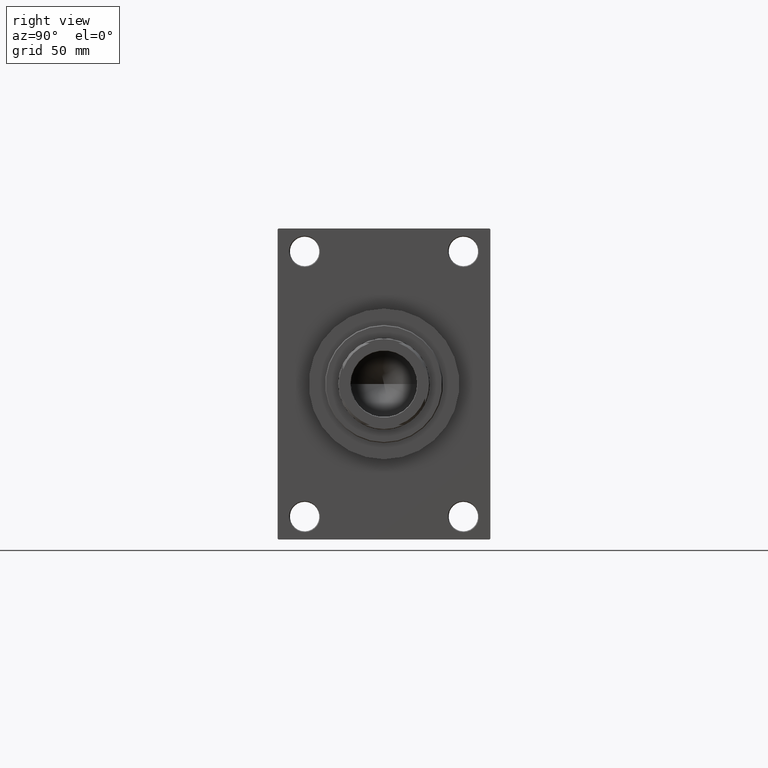
[diagram: clean part render]
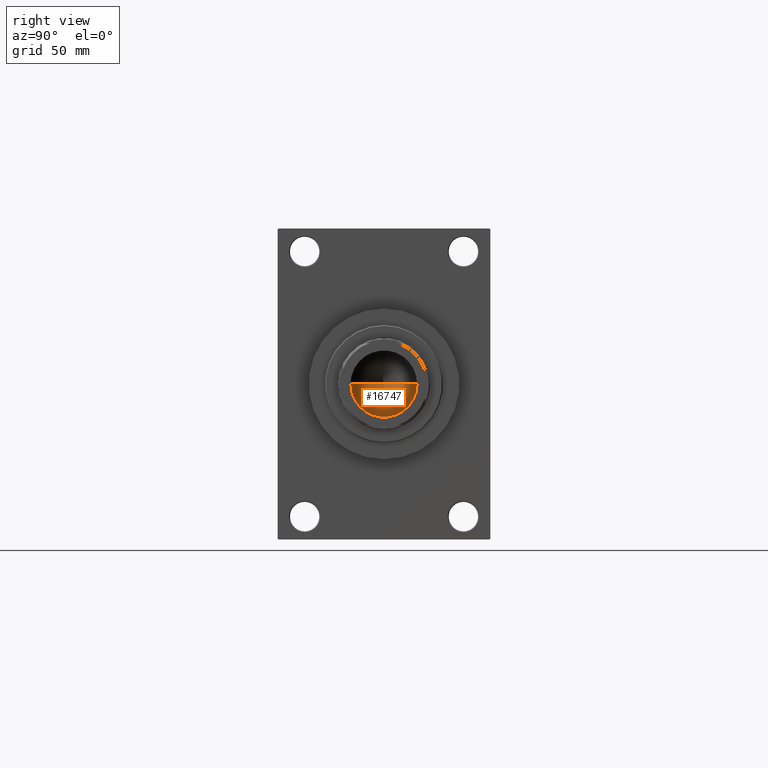
[diagram: same view with one face highlighted and labeled with its STEP entity id]
A machine part, right view. The second image highlights one B-rep face of the part: STEP entity #16747.
In plain terms, the highlighted conical surface has half-angle 59 deg.
Its self-contained STEP definition (entity closure, byte-faithful):
#130 = VERTEX_POINT ( 'NONE', #34327 ) ;
#213 = VERTEX_POINT ( 'NONE', #32996 ) ;
#463 = EDGE_CURVE ( 'NONE', #213, #130, #42355, .T. ) ;
#1725 = EDGE_CURVE ( 'NONE', #213, #25895, #47270, .T. ) ;
#3604 = ORIENTED_EDGE ( 'NONE', *, *, #43798, .T. ) ;
#4274 = VECTOR ( 'NONE', #24318, 1000.000000000000000 ) ;
#4807 = CARTESIAN_POINT ( 'NONE',  ( 20.24999999999998934, 0.000000000000000000, 257.0000000000000000 ) ) ;
#5421 = ORIENTED_EDGE ( 'NONE', *, *, #1725, .T. ) ;
#9004 = DIRECTION ( 'NONE',  ( -0.8571673007021112234, 1.049727191138617340E-16, 0.5150380749100560429 ) ) ;
#11501 = ORIENTED_EDGE ( 'NONE', *, *, #463, .F. ) ;
#11649 = AXIS2_PLACEMENT_3D ( 'NONE', #41222, #18277, #37257 ) ;
#13716 = VECTOR ( 'NONE', #9004, 1000.000000000000000 ) ;
#16002 = CONICAL_SURFACE ( 'NONE', #27011, 20.24999999999998934, 1.029744258676652313 ) ;
#16747 = ADVANCED_FACE ( 'NONE', ( #45702 ), #16002, .F. ) ;
#17736 = EDGE_LOOP ( 'NONE', ( #11501, #5421, #3604 ) ) ;
#18277 = DIRECTION ( 'NONE',  ( -0.000000000000000000, -0.000000000000000000, 1.000000000000000000 ) ) ;
#24318 = DIRECTION ( 'NONE',  ( 0.8571673007021112234, 0.000000000000000000, 0.5150380749100560429 ) ) ;
#24358 = CARTESIAN_POINT ( 'NONE',  ( 20.24999999999998934, 0.000000000000000000, 257.0000000000000000 ) ) ;
#25895 = VERTEX_POINT ( 'NONE', #24358 ) ;
#27011 = AXIS2_PLACEMENT_3D ( 'NONE', #34571, #38753, #35046 ) ;
#29007 = CIRCLE ( 'NONE', #11649, 20.24999999999998934 ) ;
#32996 = CARTESIAN_POINT ( 'NONE',  ( -1.584115414415908206E-14, 0.000000000000000000, 244.8325724646918786 ) ) ;
#34327 = CARTESIAN_POINT ( 'NONE',  ( -20.24999999999998934, 2.479909768273389117E-15, 257.0000000000000000 ) ) ;
#34571 = CARTESIAN_POINT ( 'NONE',  ( 0.000000000000000000, 0.000000000000000000, 257.0000000000000000 ) ) ;
#35046 = DIRECTION ( 'NONE',  ( 1.000000000000000000, 0.000000000000000000, 0.000000000000000000 ) ) ;
#37257 = DIRECTION ( 'NONE',  ( 1.000000000000000000, 0.000000000000000000, 0.000000000000000000 ) ) ;
#38633 = CARTESIAN_POINT ( 'NONE',  ( -20.24999999999998934, 2.479909768273389117E-15, 257.0000000000000000 ) ) ;
#38753 = DIRECTION ( 'NONE',  ( -0.000000000000000000, -0.000000000000000000, 1.000000000000000000 ) ) ;
#41222 = CARTESIAN_POINT ( 'NONE',  ( 0.000000000000000000, 0.000000000000000000, 257.0000000000000000 ) ) ;
#42355 = LINE ( 'NONE', #38633, #13716 ) ;
#43798 = EDGE_CURVE ( 'NONE', #25895, #130, #29007, .T. ) ;
#45702 = FACE_OUTER_BOUND ( 'NONE', #17736, .T. ) ;
#47270 = LINE ( 'NONE', #4807, #4274 ) ;